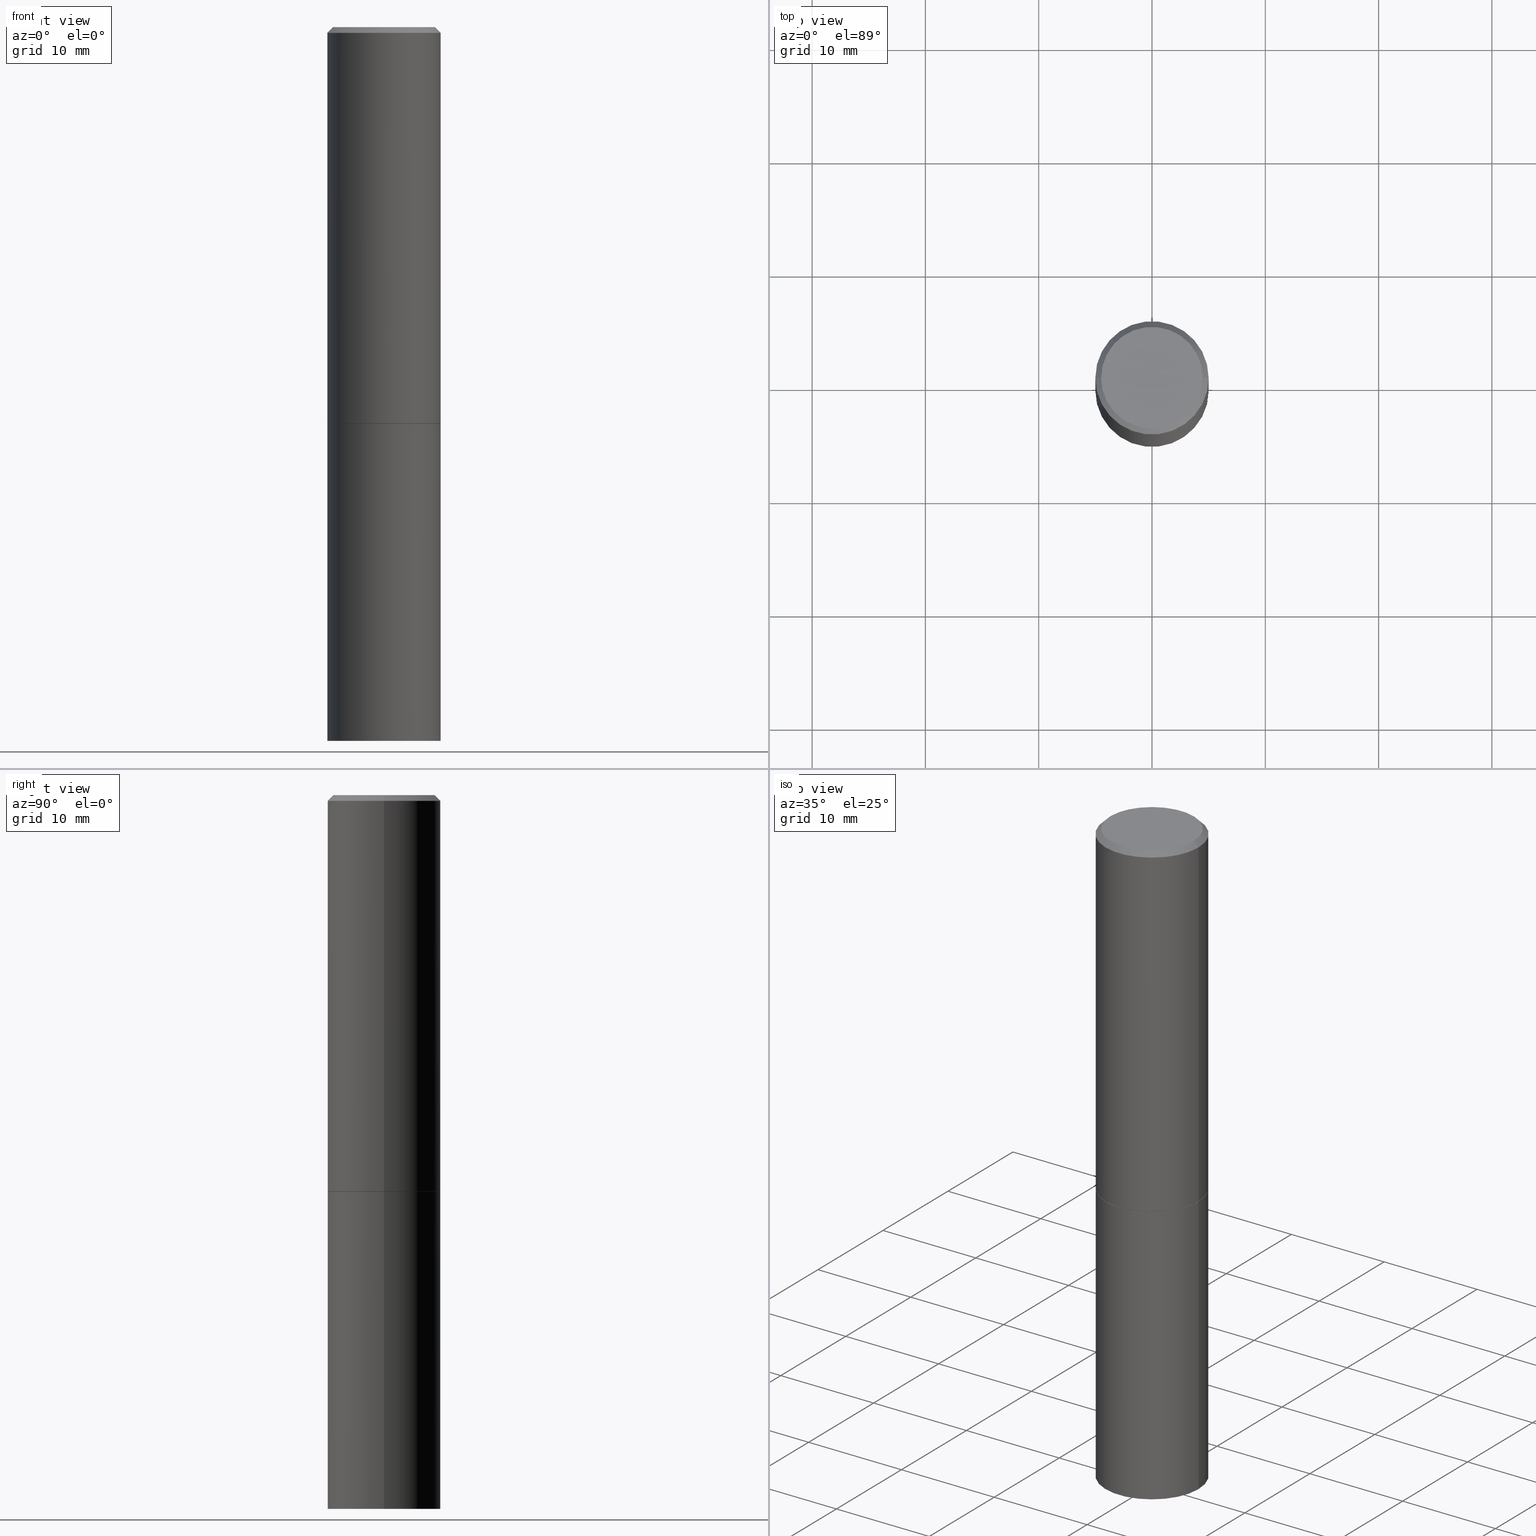
[diagram: canonical four-view strip — front | top / right | iso, engineering-drawing reading convention]
A machine part, canonical four-view strip (front | top / right | iso — engineering-drawing reading convention). The complete STEP part file that produces these views, byte-faithful:
ISO-10303-21;
HEADER;
FILE_DESCRIPTION (( 'STEP AP203' ),
    '1' );
FILE_NAME ('83224.STEP',
    '2024-03-01T01:22:19',
    ( '' ),
    ( '' ),
    'SwSTEP 2.0',
    'SolidWorks 2023',
    '' );
FILE_SCHEMA (( 'CONFIG_CONTROL_DESIGN' ));
ENDSEC;

DATA;
#1 = CALENDAR_DATE ( 2024, 29, 2 ) ;
#2 = SHAPE_DEFINITION_REPRESENTATION ( #148, #278 ) ;
#3 = EDGE_LOOP ( 'NONE', ( #29, #34 ) ) ;
#4 = EDGE_LOOP ( 'NONE', ( #119, #172, #158, #97 ) ) ;
#5 = CIRCLE ( 'NONE', #300, 0.1958499999999999963 ) ;
#6 = EDGE_CURVE ( 'NONE', #132, #109, #312, .T. ) ;
#7 = FACE_OUTER_BOUND ( 'NONE', #99, .T. ) ;
#8 = ORIENTED_EDGE ( 'NONE', *, *, #102, .F. ) ;
#9 = CC_DESIGN_PERSON_AND_ORGANIZATION_ASSIGNMENT ( #336, #111, ( #290 ) ) ;
#10 = LINE ( 'NONE', #41, #92 ) ;
#11 = ORIENTED_EDGE ( 'NONE', *, *, #231, .T. ) ;
#12 = DIRECTION ( 'NONE',  ( -2.445468806185136597E-29, 3.491481338843145583E-15, 1.000000000000000000 ) ) ;
#13 = ORIENTED_EDGE ( 'NONE', *, *, #357, .T. ) ;
#14 = CIRCLE ( 'NONE', #224, 0.1958499999999999963 ) ;
#15 = CARTESIAN_POINT ( 'NONE',  ( 1.374596203102575135E-15, 0.1968499999999951955, -1.377900000000000791 ) ) ;
#16 = EDGE_LOOP ( 'NONE', ( #150, #117, #11, #345 ) ) ;
#17 = DIRECTION ( 'NONE',  ( 2.445468806185136597E-29, -3.491481338843145583E-15, -1.000000000000000000 ) ) ;
#18 = CARTESIAN_POINT ( 'NONE',  ( 3.369611468042499163E-29, -4.810912136791969650E-15, -1.377899999999999903 ) ) ;
#19 = EDGE_CURVE ( 'NONE', #197, #40, #299, .T. ) ;
#20 = CARTESIAN_POINT ( 'NONE',  ( 4.890937612370283668E-31, -6.982962677686305168E-17, -0.02000000000000004205 ) ) ;
#21 = EDGE_CURVE ( 'NONE', #130, #211, #213, .T. ) ;
#22 = DIRECTION ( 'NONE',  ( -2.438088387897960049E-29, 3.491481338843145188E-15, 1.000000000000000000 ) ) ;
#23 = CARTESIAN_POINT ( 'NONE',  ( 0.1968500000000000250, -6.185508339894512836E-15, -1.377900000000000125 ) ) ;
#24 = SECURITY_CLASSIFICATION ( '', '', #226 ) ;
#25 = FACE_OUTER_BOUND ( 'NONE', #16, .T. ) ;
#26 = CIRCLE ( 'NONE', #199, 0.1968499999999997752 ) ;
#27 = LOCAL_TIME ( 20, 22, 19.00000000000000000, #31 ) ;
#28 = DIRECTION ( 'NONE',  ( 1.000000000000000000, 0.000000000000000000, 0.000000000000000000 ) ) ;
#29 = ORIENTED_EDGE ( 'NONE', *, *, #331, .F. ) ;
#30 = VERTEX_POINT ( 'NONE', #35 ) ;
#31 = COORDINATED_UNIVERSAL_TIME_OFFSET ( 5, 0, .BEHIND. ) ;
#32 = PERSON_AND_ORGANIZATION ( #316, #332 ) ;
#33 = DIRECTION ( 'NONE',  ( 1.000000000000000000, -6.982962677686267499E-15, 0.000000000000000000 ) ) ;
#34 = ORIENTED_EDGE ( 'NONE', *, *, #51, .F. ) ;
#35 = CARTESIAN_POINT ( 'NONE',  ( -0.1968500000000000250, -5.336713275418556283E-15, -1.377900000000000125 ) ) ;
#36 = PLANE ( 'NONE',  #66 ) ;
#37 = LOCAL_TIME ( 20, 22, 19.00000000000000000, #362 ) ;
#38 = AXIS2_PLACEMENT_3D ( 'NONE', #135, #264, #221 ) ;
#39 = LINE ( 'NONE', #157, #106 ) ;
#40 = VERTEX_POINT ( 'NONE', #89 ) ;
#41 = CARTESIAN_POINT ( 'NONE',  ( 0.1968499999999997752, -1.420318657638187544E-15, -0.02000000000000004205 ) ) ;
#42 = CARTESIAN_POINT ( 'NONE',  ( 3.369611468042499163E-29, -4.810912136791969650E-15, -1.377899999999999903 ) ) ;
#43 = LOCAL_TIME ( 20, 22, 19.00000000000000000, #60 ) ;
#44 = ORIENTED_EDGE ( 'NONE', *, *, #112, .T. ) ;
#45 = CIRCLE ( 'NONE', #327, 0.1968499999999999417 ) ;
#46 = PLANE ( 'NONE',  #353 ) ;
#47 = DIRECTION ( 'NONE',  ( -2.445468806185136597E-29, 3.491481338843145583E-15, 1.000000000000000000 ) ) ;
#48 = EDGE_LOOP ( 'NONE', ( #240, #329, #303, #73 ) ) ;
#49 = CC_DESIGN_PERSON_AND_ORGANIZATION_ASSIGNMENT ( #334, #120, ( #323 ) ) ;
#50 = EDGE_CURVE ( 'NONE', #236, #30, #146, .T. ) ;
#51 = EDGE_CURVE ( 'NONE', #228, #190, #207, .T. ) ;
#52 = DIRECTION ( 'NONE',  ( -2.445468806185136597E-29, 3.491481338843145583E-15, 1.000000000000000000 ) ) ;
#53 = ORIENTED_EDGE ( 'NONE', *, *, #19, .T. ) ;
#54 = AXIS2_PLACEMENT_3D ( 'NONE', #314, #12, #209 ) ;
#55 = FACE_OUTER_BOUND ( 'NONE', #144, .T. ) ;
#56 = CARTESIAN_POINT ( 'NONE',  ( 3.369611468042499724E-29, -4.810912136791970439E-15, -1.377900000000000125 ) ) ;
#57 = CIRCLE ( 'NONE', #254, 0.1968499999999999417 ) ;
#58 = DIRECTION ( 'NONE',  ( 1.000000000000000000, -6.982962677686267499E-15, 0.000000000000000000 ) ) ;
#59 = ORIENTED_EDGE ( 'NONE', *, *, #301, .T. ) ;
#60 = COORDINATED_UNIVERSAL_TIME_OFFSET ( 5, 0, .BEHIND. ) ;
#61 = COORDINATED_UNIVERSAL_TIME_OFFSET ( 5, 0, .BEHIND. ) ;
#62 = ADVANCED_FACE ( 'NONE', ( #171 ), #46, .T. ) ;
#63 = CARTESIAN_POINT ( 'NONE',  ( 3.369611468042499724E-29, -4.810912136791970439E-15, -1.377900000000000125 ) ) ;
#64 = VERTEX_POINT ( 'NONE', #159 ) ;
#65 = DATE_AND_TIME ( #1, #124 ) ;
#66 = AXIS2_PLACEMENT_3D ( 'NONE', #15, #349, #239 ) ;
#67 = PRODUCT ( '83224', '83224', '', ( #363 ) ) ;
#68 = CALENDAR_DATE ( 2024, 29, 2 ) ;
#69 = ORIENTED_EDGE ( 'NONE', *, *, #344, .T. ) ;
#70 = FACE_OUTER_BOUND ( 'NONE', #273, .T. ) ;
#71 = CC_DESIGN_PERSON_AND_ORGANIZATION_ASSIGNMENT ( #142, #141, ( #67 ) ) ;
#72 = CARTESIAN_POINT ( 'NONE',  ( -1.043851414335219820E-46, 1.490343170380447200E-32, 4.268512490100411279E-18 ) ) ;
#73 = ORIENTED_EDGE ( 'NONE', *, *, #6, .F. ) ;
#74 = CARTESIAN_POINT ( 'NONE',  ( 4.890937612370283668E-31, -6.982962677686305168E-17, -0.02000000000000004205 ) ) ;
#75 = CYLINDRICAL_SURFACE ( 'NONE', #260, 0.1968499999999998307 ) ;
#76 = DIRECTION ( 'NONE',  ( 1.000000000000000000, -6.982962677686266711E-15, 4.876176775795935793E-29 ) ) ;
#77 = CC_DESIGN_SECURITY_CLASSIFICATION ( #24, ( #323 ) ) ;
#78 = DIRECTION ( 'NONE',  ( 1.000000000000000000, -6.982962677686265922E-15, 4.876176775795935793E-29 ) ) ;
#79 = ADVANCED_FACE ( 'NONE', ( #98 ), #181, .T. ) ;
#80 = DIRECTION ( 'NONE',  ( 1.000000000000000000, -6.982962677686267499E-15, 0.000000000000000000 ) ) ;
#81 = FACE_OUTER_BOUND ( 'NONE', #198, .T. ) ;
#82 = AXIS2_PLACEMENT_3D ( 'NONE', #250, #151, #58 ) ;
#83 = FACE_OUTER_BOUND ( 'NONE', #139, .T. ) ;
#84 = CARTESIAN_POINT ( 'NONE',  ( 0.000000000000000000, 0.000000000000000000, 0.000000000000000000 ) ) ;
#85 = DATE_AND_TIME ( #90, #37 ) ;
#86 = ORIENTED_EDGE ( 'NONE', *, *, #114, .F. ) ;
#87 = ADVANCED_FACE ( 'NONE', ( #7 ), #320, .T. ) ;
#88 = PERSON_AND_ORGANIZATION ( #316, #332 ) ;
#89 = CARTESIAN_POINT ( 'NONE',  ( -0.1968499999999999417, -1.039921765771237577E-15, -1.376900000000000013 ) ) ;
#90 = CALENDAR_DATE ( 2024, 29, 2 ) ;
#91 = APPROVAL_ROLE ( '' ) ;
#92 = VECTOR ( 'NONE', #242, 39.37007874015748143 ) ;
#93 = CARTESIAN_POINT ( 'NONE',  ( 0.1968499999999997752, -1.420318657638187544E-15, -0.02000000000000004205 ) ) ;
#94 = CARTESIAN_POINT ( 'NONE',  ( 0.000000000000000000, 0.000000000000000000, 0.000000000000000000 ) ) ;
#95 = DIRECTION ( 'NONE',  ( -2.445468806185136597E-29, 3.491481338843145583E-15, 1.000000000000000000 ) ) ;
#96 = CONICAL_SURFACE ( 'NONE', #333, 0.1968499999999997752, 0.7853981633974469467 ) ;
#97 = ORIENTED_EDGE ( 'NONE', *, *, #267, .F. ) ;
#98 = FACE_OUTER_BOUND ( 'NONE', #183, .T. ) ;
#99 = EDGE_LOOP ( 'NONE', ( #86, #270, #201, #216 ) ) ;
#100 = FACE_OUTER_BOUND ( 'NONE', #48, .T. ) ;
#101 = LENGTH_MEASURE_WITH_UNIT ( LENGTH_MEASURE( 0.02539999999999999897 ), #188 );
#102 = EDGE_CURVE ( 'NONE', #132, #40, #45, .T. ) ;
#103 = CIRCLE ( 'NONE', #38, 0.1968500000000000250 ) ;
#104 =( NAMED_UNIT ( * ) PLANE_ANGLE_UNIT ( ) SI_UNIT ( $, .RADIAN. ) );
#105 = DIRECTION ( 'NONE',  ( 1.000000000000000000, -6.982962677686265922E-15, 4.876176775795935793E-29 ) ) ;
#106 = VECTOR ( 'NONE', #342, 39.37007874015748143 ) ;
#107 = CONICAL_SURFACE ( 'NONE', #223, 0.1958499999999999963, 0.7853981633975165577 ) ;
#108 =( NAMED_UNIT ( * ) SI_UNIT ( $, .STERADIAN. ) SOLID_ANGLE_UNIT ( ) );
#109 = VERTEX_POINT ( 'NONE', #93 ) ;
#110 = DATE_TIME_ROLE ( 'creation_date' ) ;
#111 = PERSON_AND_ORGANIZATION_ROLE ( 'creator' ) ;
#112 = EDGE_CURVE ( 'NONE', #211, #130, #175, .T. ) ;
#113 = CARTESIAN_POINT ( 'NONE',  ( -0.1958499999999999963, -3.419314188805812871E-15, -1.377899999999999903 ) ) ;
#114 = EDGE_CURVE ( 'NONE', #40, #234, #39, .T. ) ;
#115 = CALENDAR_DATE ( 2024, 29, 2 ) ;
#116 = VECTOR ( 'NONE', #147, 39.37007874015748143 ) ;
#117 = ORIENTED_EDGE ( 'NONE', *, *, #156, .T. ) ;
#118 = APPROVAL_DATE_TIME ( #65, #237 ) ;
#119 = ORIENTED_EDGE ( 'NONE', *, *, #344, .F. ) ;
#120 = PERSON_AND_ORGANIZATION_ROLE ( 'creator' ) ;
#121 = ORIENTED_EDGE ( 'NONE', *, *, #21, .T. ) ;
#122 =( GEOMETRIC_REPRESENTATION_CONTEXT ( 3 ) GLOBAL_UNCERTAINTY_ASSIGNED_CONTEXT ( ( #355 ) ) GLOBAL_UNIT_ASSIGNED_CONTEXT ( ( #266, #104, #108 ) ) REPRESENTATION_CONTEXT ( 'NONE', 'WORKASPACE' ) );
#123 = AXIS2_PLACEMENT_3D ( 'NONE', #56, #52, #80 ) ;
#124 = LOCAL_TIME ( 20, 22, 19.00000000000000000, #176 ) ;
#125 = CARTESIAN_POINT ( 'NONE',  ( -0.1968500000000000250, -5.336713275418556283E-15, -2.480300000000000171 ) ) ;
#126 = MANIFOLD_SOLID_BREP ( 'Body-Move/Copy2[2]', #275 ) ;
#127 = CARTESIAN_POINT ( 'NONE',  ( 1.374596203102602153E-15, 0.1968499999999913375, -2.480300000000001059 ) ) ;
#128 = EDGE_CURVE ( 'NONE', #190, #236, #279, .T. ) ;
#129 = EDGE_CURVE ( 'NONE', #197, #64, #14, .T. ) ;
#130 = VERTEX_POINT ( 'NONE', #283 ) ;
#131 = FACE_OUTER_BOUND ( 'NONE', #347, .T. ) ;
#132 = VERTEX_POINT ( 'NONE', #261 ) ;
#133 = ORIENTED_EDGE ( 'NONE', *, *, #128, .F. ) ;
#134 = CARTESIAN_POINT ( 'NONE',  ( 4.890937612370283668E-31, -6.982962677686305168E-17, -0.02000000000000004205 ) ) ;
#135 = CARTESIAN_POINT ( 'NONE',  ( 6.065496279980994755E-29, -8.659921164732655335E-15, -2.480300000000000171 ) ) ;
#136 = AXIS2_PLACEMENT_3D ( 'NONE', #63, #274, #33 ) ;
#137 = LINE ( 'NONE', #289, #140 ) ;
#138 = LINE ( 'NONE', #164, #162 ) ;
#139 = EDGE_LOOP ( 'NONE', ( #59, #53, #8, #244 ) ) ;
#140 = VECTOR ( 'NONE', #326, 39.37007874015748143 ) ;
#141 = PERSON_AND_ORGANIZATION_ROLE ( 'design_owner' ) ;
#142 = PERSON_AND_ORGANIZATION ( #316, #332 ) ;
#143 = ADVANCED_FACE ( 'NONE', ( #131 ), #36, .F. ) ;
#144 = EDGE_LOOP ( 'NONE', ( #252, #306, #271, #204 ) ) ;
#145 = DATE_AND_TIME ( #115, #340 ) ;
#146 = CIRCLE ( 'NONE', #136, 0.1968500000000000250 ) ;
#147 = DIRECTION ( 'NONE',  ( -2.445468806185136877E-29, 3.491481338843145188E-15, 1.000000000000000000 ) ) ;
#148 = PRODUCT_DEFINITION_SHAPE ( 'NONE', 'NONE',  #290 ) ;
#149 = PERSON_AND_ORGANIZATION ( #316, #332 ) ;
#150 = ORIENTED_EDGE ( 'NONE', *, *, #112, .F. ) ;
#151 = DIRECTION ( 'NONE',  ( -2.445468806185136597E-29, 3.491481338843145583E-15, 1.000000000000000000 ) ) ;
#152 = CC_DESIGN_PERSON_AND_ORGANIZATION_ASSIGNMENT ( #88, #173, ( #323 ) ) ;
#153 = PLANE ( 'NONE',  #286 ) ;
#154 = CIRCLE ( 'NONE', #54, 0.1968499999999997752 ) ;
#155 = CC_DESIGN_DATE_AND_TIME_ASSIGNMENT ( #85, #110, ( #290 ) ) ;
#156 = EDGE_CURVE ( 'NONE', #211, #109, #10, .T. ) ;
#157 = CARTESIAN_POINT ( 'NONE',  ( -0.1968499999999998307, 1.398703375343756013E-15, -9.682923725166775270E-30 ) ) ;
#158 = ORIENTED_EDGE ( 'NONE', *, *, #128, .T. ) ;
#159 = CARTESIAN_POINT ( 'NONE',  ( 0.1958499999999999963, -6.178525377216825244E-15, -1.377899999999999903 ) ) ;
#160 = DESIGN_CONTEXT ( 'detailed design', #203, 'design' ) ;
#161 = DIRECTION ( 'NONE',  ( 2.438088387897960049E-29, -3.491481338843145188E-15, -1.000000000000000000 ) ) ;
#162 = VECTOR ( 'NONE', #293, 39.37007874015748143 ) ;
#163 = DIRECTION ( 'NONE',  ( 2.438088387897960049E-29, -3.491481338843145188E-15, -1.000000000000000000 ) ) ;
#164 = CARTESIAN_POINT ( 'NONE',  ( -0.1968500000000000250, 1.398703375343757393E-15, -9.682923725166783677E-30 ) ) ;
#165 = CARTESIAN_POINT ( 'NONE',  ( -0.1968499999999997752, 1.304766576325676930E-15, -0.02000000000000004205 ) ) ;
#166 = CARTESIAN_POINT ( 'NONE',  ( 3.367165999236314681E-29, -4.807420655453126643E-15, -1.376900000000000013 ) ) ;
#167 = LINE ( 'NONE', #194, #268 ) ;
#168 = DIRECTION ( 'NONE',  ( 1.000000000000000000, -6.982962677686268288E-15, 0.000000000000000000 ) ) ;
#169 = ADVANCED_FACE ( 'NONE', ( #100 ), #75, .T. ) ;
#170 = CONICAL_SURFACE ( 'NONE', #193, 0.1958499999999999963, 0.7853981633975165577 ) ;
#171 = FACE_OUTER_BOUND ( 'NONE', #3, .T. ) ;
#172 = ORIENTED_EDGE ( 'NONE', *, *, #51, .T. ) ;
#173 = PERSON_AND_ORGANIZATION_ROLE ( 'design_supplier' ) ;
#174 = DIRECTION ( 'NONE',  ( -0.7071067811865957564, 7.493145998870527710E-15, 0.7071067811864992780 ) ) ;
#175 = CIRCLE ( 'NONE', #249, 0.1768499999999997851 ) ;
#176 = COORDINATED_UNIVERSAL_TIME_OFFSET ( 5, 0, .BEHIND. ) ;
#177 = DATE_AND_TIME ( #68, #27 ) ;
#178 = DIRECTION ( 'NONE',  ( -2.445468806185136597E-29, 3.491481338843145583E-15, 1.000000000000000000 ) ) ;
#179 = CARTESIAN_POINT ( 'NONE',  ( -0.1958499999999999963, -3.414015734457591258E-15, -1.377899999999999903 ) ) ;
#180 = ADVANCED_FACE ( 'NONE', ( #184 ), #153, .F. ) ;
#181 = CYLINDRICAL_SURFACE ( 'NONE', #328, 0.1968500000000000250 ) ;
#182 = CARTESIAN_POINT ( 'NONE',  ( 3.367165999236314681E-29, -4.807420655453126643E-15, -1.376900000000000013 ) ) ;
#183 = EDGE_LOOP ( 'NONE', ( #310, #69, #322, #133 ) ) ;
#184 = FACE_OUTER_BOUND ( 'NONE', #339, .T. ) ;
#185 = AXIS2_PLACEMENT_3D ( 'NONE', #225, #22, #78 ) ;
#186 = DIRECTION ( 'NONE',  ( -1.000000000000000000, 6.982962677686265922E-15, -4.876176775795935793E-29 ) ) ;
#187 = AXIS2_PLACEMENT_3D ( 'NONE', #350, #95, #281 ) ;
#188 =( LENGTH_UNIT ( ) NAMED_UNIT ( * ) SI_UNIT ( $, .METRE. ) );
#189 = FACE_OUTER_BOUND ( 'NONE', #4, .T. ) ;
#190 = VERTEX_POINT ( 'NONE', #346 ) ;
#191 = ADVANCED_FACE ( 'NONE', ( #70 ), #96, .T. ) ;
#192 = DIRECTION ( 'NONE',  ( 1.000000000000000000, -6.982962677686268288E-15, 0.000000000000000000 ) ) ;
#193 = AXIS2_PLACEMENT_3D ( 'NONE', #294, #243, #354 ) ;
#194 = CARTESIAN_POINT ( 'NONE',  ( -0.1968499999999997752, 1.304766576325676930E-15, -0.02000000000000004205 ) ) ;
#195 = DIRECTION ( 'NONE',  ( -2.445468806185136597E-29, 3.491481338843145583E-15, 1.000000000000000000 ) ) ;
#196 = APPLICATION_PROTOCOL_DEFINITION ( 'international standard', 'config_control_design', 1994, #203 ) ;
#197 = VERTEX_POINT ( 'NONE', #179 ) ;
#198 = EDGE_LOOP ( 'NONE', ( #308, #365 ) ) ;
#199 = AXIS2_PLACEMENT_3D ( 'NONE', #74, #195, #359 ) ;
#200 = DIRECTION ( 'NONE',  ( 0.000000000000000000, 0.000000000000000000, 1.000000000000000000 ) ) ;
#201 = ORIENTED_EDGE ( 'NONE', *, *, #6, .T. ) ;
#202 = DATE_AND_TIME ( #205, #43 ) ;
#203 = APPLICATION_CONTEXT ( 'configuration controlled 3d designs of mechanical parts and assemblies' ) ;
#204 = ORIENTED_EDGE ( 'NONE', *, *, #317, .F. ) ;
#205 = CALENDAR_DATE ( 2024, 29, 2 ) ;
#206 = CARTESIAN_POINT ( 'NONE',  ( -1.043851414335219820E-46, 1.490343170380447200E-32, 4.268512490100411279E-18 ) ) ;
#207 = CIRCLE ( 'NONE', #82, 0.1968500000000000250 ) ;
#208 = ORIENTED_EDGE ( 'NONE', *, *, #220, .T. ) ;
#209 = DIRECTION ( 'NONE',  ( 1.000000000000000000, -6.982962677686266711E-15, 0.000000000000000000 ) ) ;
#210 = CARTESIAN_POINT ( 'NONE',  ( 0.1768499999999997851, -1.316798864272040563E-15, 4.268512490109333727E-18 ) ) ;
#211 = VERTEX_POINT ( 'NONE', #210 ) ;
#212 = CARTESIAN_POINT ( 'NONE',  ( 0.000000000000000000, 0.000000000000000000, 0.000000000000000000 ) ) ;
#213 = CIRCLE ( 'NONE', #235, 0.1768499999999997851 ) ;
#214 = ORIENTED_EDGE ( 'NONE', *, *, #21, .F. ) ;
#215 = DIRECTION ( 'NONE',  ( 1.000000000000000000, -6.982962677686265922E-15, 4.876176775795935793E-29 ) ) ;
#216 = ORIENTED_EDGE ( 'NONE', *, *, #220, .F. ) ;
#217 = DIRECTION ( 'NONE',  ( -2.445468806185136877E-29, 3.491481338843145188E-15, 1.000000000000000000 ) ) ;
#218 = CC_DESIGN_APPROVAL ( #237, ( #290 ) ) ;
#219 = AXIS2_PLACEMENT_3D ( 'NONE', #84, #356, #105 ) ;
#220 = EDGE_CURVE ( 'NONE', #234, #109, #154, .T. ) ;
#221 = DIRECTION ( 'NONE',  ( 1.000000000000000000, -6.982962677686267499E-15, 0.000000000000000000 ) ) ;
#222 = DIRECTION ( 'NONE',  ( -1.000000000000000000, 6.982962677686266711E-15, 0.000000000000000000 ) ) ;
#223 = AXIS2_PLACEMENT_3D ( 'NONE', #358, #324, #192 ) ;
#224 = AXIS2_PLACEMENT_3D ( 'NONE', #42, #321, #241 ) ;
#225 = CARTESIAN_POINT ( 'NONE',  ( 3.369611468042499724E-29, -4.810912136791970439E-15, -1.377900000000000125 ) ) ;
#226 = SECURITY_CLASSIFICATION_LEVEL ( 'unclassified' ) ;
#227 = APPROVAL_STATUS ( 'not_yet_approved' ) ;
#228 = VERTEX_POINT ( 'NONE', #125 ) ;
#229 = VECTOR ( 'NONE', #217, 39.37007874015748143 ) ;
#230 = APPLICATION_PROTOCOL_DEFINITION ( 'international standard', 'config_control_design', 1994, #315 ) ;
#231 = EDGE_CURVE ( 'NONE', #109, #234, #26, .T. ) ;
#232 = ORIENTED_EDGE ( 'NONE', *, *, #267, .T. ) ;
#233 = CC_DESIGN_PERSON_AND_ORGANIZATION_ASSIGNMENT ( #251, #272, ( #24 ) ) ;
#234 = VERTEX_POINT ( 'NONE', #165 ) ;
#235 = AXIS2_PLACEMENT_3D ( 'NONE', #206, #178, #277 ) ;
#236 = VERTEX_POINT ( 'NONE', #23 ) ;
#237 = APPROVAL ( #227, 'UNSPECIFIED' ) ;
#238 = DIRECTION ( 'NONE',  ( -2.445468806185136597E-29, 3.491481338843145583E-15, 1.000000000000000000 ) ) ;
#239 = DIRECTION ( 'NONE',  ( -1.000000000000000000, 6.982962677686265922E-15, -4.876176775795935793E-29 ) ) ;
#240 = ORIENTED_EDGE ( 'NONE', *, *, #102, .T. ) ;
#241 = DIRECTION ( 'NONE',  ( 1.000000000000000000, -6.982962677686268288E-15, 0.000000000000000000 ) ) ;
#242 = DIRECTION ( 'NONE',  ( 0.7071067811865465735, -7.319954787623252890E-15, -0.7071067811865484609 ) ) ;
#243 = DIRECTION ( 'NONE',  ( -2.445468806185136597E-29, 3.491481338843145583E-15, 1.000000000000000000 ) ) ;
#244 = ORIENTED_EDGE ( 'NONE', *, *, #263, .F. ) ;
#245 = DIRECTION ( 'NONE',  ( -0.7071067811865465735, 2.468850131082246805E-15, -0.7071067811865484609 ) ) ;
#246 = APPROVAL_ROLE ( '' ) ;
#247 = ADVANCED_FACE ( 'NONE', ( #25 ), #318, .T. ) ;
#248 = ADVANCED_FACE ( 'NONE', ( #55 ), #170, .T. ) ;
#249 = AXIS2_PLACEMENT_3D ( 'NONE', #72, #285, #287 ) ;
#250 = CARTESIAN_POINT ( 'NONE',  ( 6.065496279980994755E-29, -8.659921164732655335E-15, -2.480300000000000171 ) ) ;
#251 = PERSON_AND_ORGANIZATION ( #316, #332 ) ;
#252 = ORIENTED_EDGE ( 'NONE', *, *, #19, .F. ) ;
#253 = APPROVAL_PERSON_ORGANIZATION ( #149, #237, #246 ) ;
#254 = AXIS2_PLACEMENT_3D ( 'NONE', #166, #265, #325 ) ;
#255 = CARTESIAN_POINT ( 'NONE',  ( 1.234936949548814617E-15, 0.1768499999999997851, -6.153342185293593634E-16 ) ) ;
#256 = CARTESIAN_POINT ( 'NONE',  ( 0.1968500000000000250, -1.374596203102541608E-15, 9.598753983154300858E-30 ) ) ;
#257 = DIRECTION ( 'NONE',  ( 1.000000000000000000, -6.982962677686265922E-15, 0.000000000000000000 ) ) ;
#258 = ORIENTED_EDGE ( 'NONE', *, *, #50, .T. ) ;
#259 = CC_DESIGN_APPROVAL ( #304, ( #323 ) ) ;
#260 = AXIS2_PLACEMENT_3D ( 'NONE', #212, #262, #76 ) ;
#261 = CARTESIAN_POINT ( 'NONE',  ( 0.1968499999999999417, -6.182016858555667463E-15, -1.376900000000000013 ) ) ;
#262 = DIRECTION ( 'NONE',  ( -2.445468806185136597E-29, 3.491481338843145583E-15, 1.000000000000000000 ) ) ;
#263 = EDGE_CURVE ( 'NONE', #64, #132, #137, .T. ) ;
#264 = DIRECTION ( 'NONE',  ( -2.445468806185136597E-29, 3.491481338843145583E-15, 1.000000000000000000 ) ) ;
#265 = DIRECTION ( 'NONE',  ( -2.445468806185136597E-29, 3.491481338843145583E-15, 1.000000000000000000 ) ) ;
#266 =( CONVERSION_BASED_UNIT ( 'INCH', #101 ) LENGTH_UNIT ( ) NAMED_UNIT ( #364 ) );
#267 = EDGE_CURVE ( 'NONE', #30, #236, #269, .T. ) ;
#268 = VECTOR ( 'NONE', #245, 39.37007874015748143 ) ;
#269 = CIRCLE ( 'NONE', #123, 0.1968500000000000250 ) ;
#270 = ORIENTED_EDGE ( 'NONE', *, *, #317, .T. ) ;
#271 = ORIENTED_EDGE ( 'NONE', *, *, #263, .T. ) ;
#272 = PERSON_AND_ORGANIZATION_ROLE ( 'classification_officer' ) ;
#273 = EDGE_LOOP ( 'NONE', ( #284, #214, #13, #208 ) ) ;
#274 = DIRECTION ( 'NONE',  ( -2.445468806185136597E-29, 3.491481338843145583E-15, 1.000000000000000000 ) ) ;
#275 = CLOSED_SHELL ( 'NONE', ( #343, #169, #247, #191, #87, #248, #338, #180 ) ) ;
#276 = PERSON_AND_ORGANIZATION ( #316, #332 ) ;
#277 = DIRECTION ( 'NONE',  ( 1.000000000000000000, -6.982962677686266711E-15, 4.875932113059884174E-29 ) ) ;
#278 = ADVANCED_BREP_SHAPE_REPRESENTATION ( '83224', ( #351, #126, #361 ), #122 ) ;
#279 = LINE ( 'NONE', #256, #229 ) ;
#280 = CC_DESIGN_APPROVAL ( #296, ( #24 ) ) ;
#281 = DIRECTION ( 'NONE',  ( 1.000000000000000000, -6.982962677686266711E-15, 4.876176775795935793E-29 ) ) ;
#282 = ADVANCED_FACE ( 'NONE', ( #189 ), #291, .T. ) ;
#283 = CARTESIAN_POINT ( 'NONE',  ( -0.1768499999999997851, 1.269851762937246069E-15, 4.268512490091652920E-18 ) ) ;
#284 = ORIENTED_EDGE ( 'NONE', *, *, #156, .F. ) ;
#285 = DIRECTION ( 'NONE',  ( -2.445468806185136597E-29, 3.491481338843145583E-15, 1.000000000000000000 ) ) ;
#286 = AXIS2_PLACEMENT_3D ( 'NONE', #255, #163, #319 ) ;
#287 = DIRECTION ( 'NONE',  ( 1.000000000000000000, -6.982962677686266711E-15, 4.875932113059884174E-29 ) ) ;
#288 = APPROVAL_PERSON_ORGANIZATION ( #276, #296, #330 ) ;
#289 = CARTESIAN_POINT ( 'NONE',  ( 0.1958499999999999963, -6.178525377216825244E-15, -1.377899999999999903 ) ) ;
#290 = PRODUCT_DEFINITION ( 'UNKNOWN', '', #323, #160 ) ;
#291 = CYLINDRICAL_SURFACE ( 'NONE', #219, 0.1968500000000000250 ) ;
#292 = PRODUCT_RELATED_PRODUCT_CATEGORY ( 'detail', '', ( #67 ) ) ;
#293 = DIRECTION ( 'NONE',  ( -2.445468806185136877E-29, 3.491481338843145188E-15, 1.000000000000000000 ) ) ;
#294 = CARTESIAN_POINT ( 'NONE',  ( 3.369611468042499163E-29, -4.810912136791969650E-15, -1.377899999999999903 ) ) ;
#295 = DIRECTION ( 'NONE',  ( 2.445468806185136597E-29, -3.491481338843145583E-15, -1.000000000000000000 ) ) ;
#296 = APPROVAL ( #305, 'UNSPECIFIED' ) ;
#297 = APPROVAL_DATE_TIME ( #145, #296 ) ;
#298 = APPROVAL_PERSON_ORGANIZATION ( #32, #304, #91 ) ;
#299 = LINE ( 'NONE', #113, #309 ) ;
#300 = AXIS2_PLACEMENT_3D ( 'NONE', #18, #47, #168 ) ;
#301 = EDGE_CURVE ( 'NONE', #64, #197, #5, .T. ) ;
#302 = APPROVAL_STATUS ( 'not_yet_approved' ) ;
#303 = ORIENTED_EDGE ( 'NONE', *, *, #231, .F. ) ;
#304 = APPROVAL ( #302, 'UNSPECIFIED' ) ;
#305 = APPROVAL_STATUS ( 'not_yet_approved' ) ;
#306 = ORIENTED_EDGE ( 'NONE', *, *, #129, .T. ) ;
#307 = DATE_TIME_ROLE ( 'classification_date' ) ;
#308 = ORIENTED_EDGE ( 'NONE', *, *, #301, .F. ) ;
#309 = VECTOR ( 'NONE', #174, 39.37007874015748143 ) ;
#310 = ORIENTED_EDGE ( 'NONE', *, *, #331, .T. ) ;
#311 = APPROVAL_DATE_TIME ( #202, #304 ) ;
#312 = LINE ( 'NONE', #335, #116 ) ;
#313 = DIRECTION ( 'NONE',  ( -2.445468806185136597E-29, 3.491481338843145583E-15, 1.000000000000000000 ) ) ;
#314 = CARTESIAN_POINT ( 'NONE',  ( 4.890937612370283668E-31, -6.982962677686305168E-17, -0.02000000000000004205 ) ) ;
#315 = APPLICATION_CONTEXT ( 'configuration controlled 3d designs of mechanical parts and assemblies' ) ;
#316 = PERSON ( 'UNSPECIFIED', 'UNSPECIFIED', 'UNSPECIFIED', ('UNSPECIFIED'), ('UNSPECIFIED'), ('UNSPECIFIED') ) ;
#317 = EDGE_CURVE ( 'NONE', #40, #132, #57, .T. ) ;
#318 = CONICAL_SURFACE ( 'NONE', #348, 0.1968499999999997752, 0.7853981633974469467 ) ;
#319 = DIRECTION ( 'NONE',  ( -1.000000000000000000, 6.982962677686265922E-15, -4.876176775795935793E-29 ) ) ;
#320 = CYLINDRICAL_SURFACE ( 'NONE', #187, 0.1968499999999998307 ) ;
#321 = DIRECTION ( 'NONE',  ( -2.445468806185136597E-29, 3.491481338843145583E-15, 1.000000000000000000 ) ) ;
#322 = ORIENTED_EDGE ( 'NONE', *, *, #50, .F. ) ;
#323 = PRODUCT_DEFINITION_FORMATION_WITH_SPECIFIED_SOURCE ( 'ANY', '', #67, .NOT_KNOWN. ) ;
#324 = DIRECTION ( 'NONE',  ( -2.445468806185136597E-29, 3.491481338843145583E-15, 1.000000000000000000 ) ) ;
#325 = DIRECTION ( 'NONE',  ( 1.000000000000000000, -6.982962677686265922E-15, 0.000000000000000000 ) ) ;
#326 = DIRECTION ( 'NONE',  ( 0.7071067811865957564, -2.468850131082761932E-15, 0.7071067811864992780 ) ) ;
#327 = AXIS2_PLACEMENT_3D ( 'NONE', #182, #238, #257 ) ;
#328 = AXIS2_PLACEMENT_3D ( 'NONE', #94, #313, #215 ) ;
#329 = ORIENTED_EDGE ( 'NONE', *, *, #114, .T. ) ;
#330 = APPROVAL_ROLE ( '' ) ;
#331 = EDGE_CURVE ( 'NONE', #190, #228, #103, .T. ) ;
#332 = ORGANIZATION ( 'UNSPECIFIED', 'UNSPECIFIED', '' ) ;
#333 = AXIS2_PLACEMENT_3D ( 'NONE', #134, #17, #341 ) ;
#334 = PERSON_AND_ORGANIZATION ( #316, #332 ) ;
#335 = CARTESIAN_POINT ( 'NONE',  ( 0.1968499999999998307, -1.374596203102540425E-15, 9.598753983154291049E-30 ) ) ;
#336 = PERSON_AND_ORGANIZATION ( #316, #332 ) ;
#337 = CARTESIAN_POINT ( 'NONE',  ( 0.000000000000000000, 0.000000000000000000, 0.000000000000000000 ) ) ;
#338 = ADVANCED_FACE ( 'NONE', ( #81 ), #352, .F. ) ;
#339 = EDGE_LOOP ( 'NONE', ( #121, #44 ) ) ;
#340 = LOCAL_TIME ( 20, 22, 19.00000000000000000, #61 ) ;
#341 = DIRECTION ( 'NONE',  ( -1.000000000000000000, 6.982962677686266711E-15, 0.000000000000000000 ) ) ;
#342 = DIRECTION ( 'NONE',  ( -2.445468806185136877E-29, 3.491481338843145188E-15, 1.000000000000000000 ) ) ;
#343 = ADVANCED_FACE ( 'NONE', ( #83 ), #107, .T. ) ;
#344 = EDGE_CURVE ( 'NONE', #228, #30, #138, .T. ) ;
#345 = ORIENTED_EDGE ( 'NONE', *, *, #357, .F. ) ;
#346 = CARTESIAN_POINT ( 'NONE',  ( 0.1968500000000000250, -1.003451736783519694E-14, -2.480300000000000171 ) ) ;
#347 = EDGE_LOOP ( 'NONE', ( #258, #232 ) ) ;
#348 = AXIS2_PLACEMENT_3D ( 'NONE', #20, #295, #222 ) ;
#349 = DIRECTION ( 'NONE',  ( 2.438088387897960049E-29, -3.491481338843145188E-15, -1.000000000000000000 ) ) ;
#350 = CARTESIAN_POINT ( 'NONE',  ( 0.000000000000000000, 0.000000000000000000, 0.000000000000000000 ) ) ;
#351 = MANIFOLD_SOLID_BREP ( 'Body-Move/Copy2[1]', #360 ) ;
#352 = PLANE ( 'NONE',  #185 ) ;
#353 = AXIS2_PLACEMENT_3D ( 'NONE', #127, #161, #186 ) ;
#354 = DIRECTION ( 'NONE',  ( 1.000000000000000000, -6.982962677686268288E-15, 0.000000000000000000 ) ) ;
#355 = UNCERTAINTY_MEASURE_WITH_UNIT (LENGTH_MEASURE( 1.000000000000000082E-05 ), #266, 'distance_accuracy_value', 'NONE');
#356 = DIRECTION ( 'NONE',  ( -2.445468806185136597E-29, 3.491481338843145583E-15, 1.000000000000000000 ) ) ;
#357 = EDGE_CURVE ( 'NONE', #130, #234, #167, .T. ) ;
#358 = CARTESIAN_POINT ( 'NONE',  ( 3.369611468042499163E-29, -4.810912136791969650E-15, -1.377899999999999903 ) ) ;
#359 = DIRECTION ( 'NONE',  ( 1.000000000000000000, -6.982962677686266711E-15, 0.000000000000000000 ) ) ;
#360 = CLOSED_SHELL ( 'NONE', ( #79, #62, #143, #282 ) ) ;
#361 = AXIS2_PLACEMENT_3D ( 'NONE', #337, #200, #28 ) ;
#362 = COORDINATED_UNIVERSAL_TIME_OFFSET ( 5, 0, .BEHIND. ) ;
#363 = MECHANICAL_CONTEXT ( 'NONE', #315, 'mechanical' ) ;
#364 = DIMENSIONAL_EXPONENTS ( 1.000000000000000000, 0.000000000000000000, 0.000000000000000000, 0.000000000000000000, 0.000000000000000000, 0.000000000000000000, 0.000000000000000000 ) ;
#365 = ORIENTED_EDGE ( 'NONE', *, *, #129, .F. ) ;
#366 = CC_DESIGN_DATE_AND_TIME_ASSIGNMENT ( #177, #307, ( #24 ) ) ;
ENDSEC;
END-ISO-10303-21;
